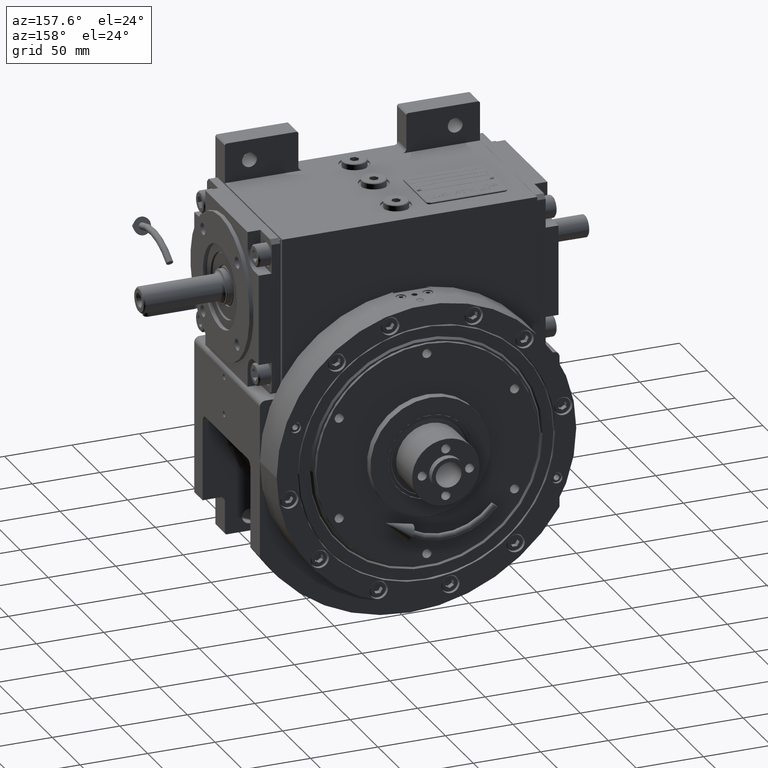
[diagram: clean part render]
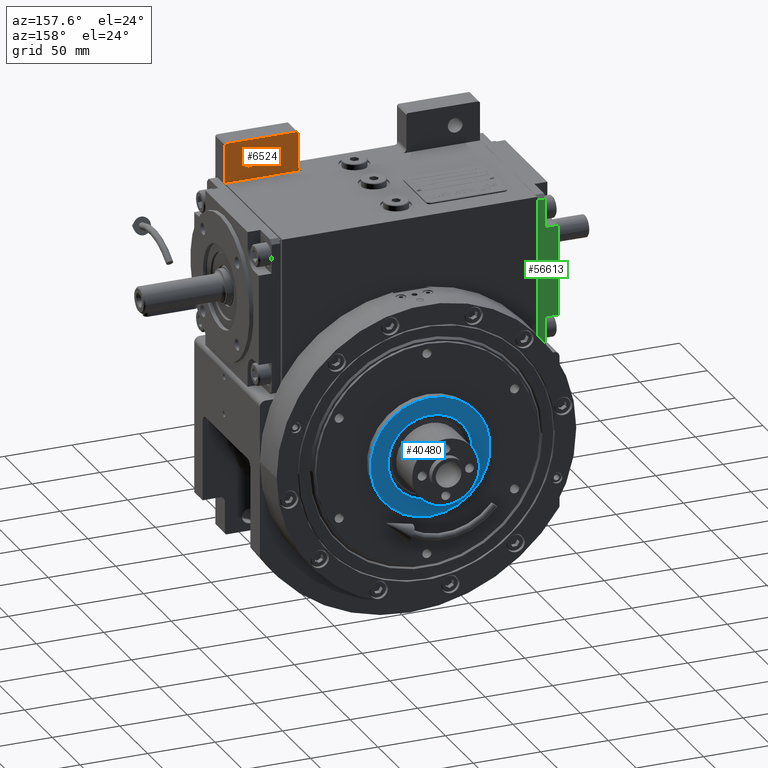
[diagram: same view with three faces highlighted in distinct colors, each labeled with its STEP entity id]
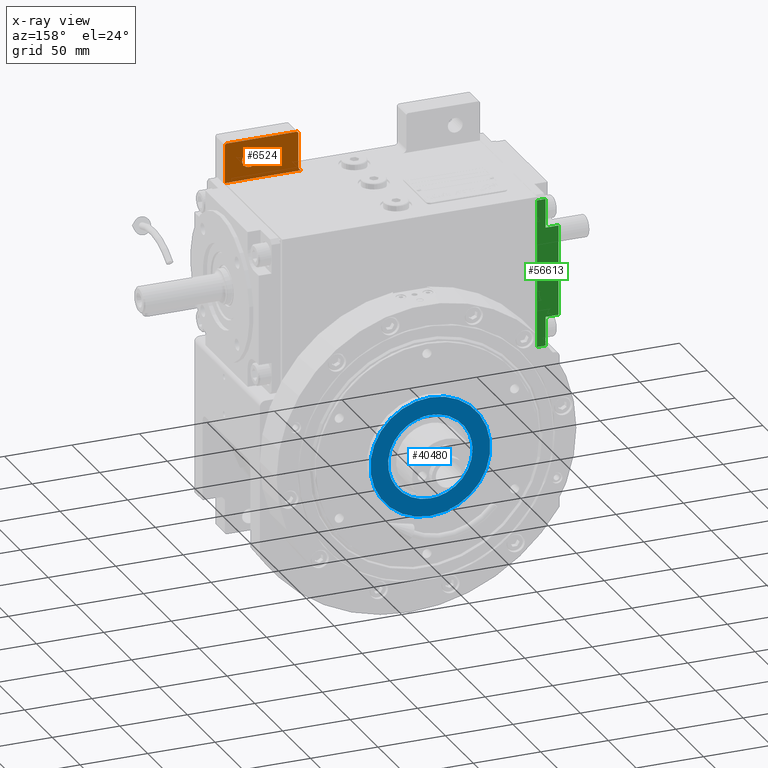
[diagram: x-ray of the same camera — body ghosted, the three highlighted faces saturated]
A machine part, auxiliary view with three faces highlighted in distinct colors.
The next image is the same camera in x-ray (body ghosted, the three faces saturated) — at least one of them is partly hidden behind the body in this view.
Their STEP definitions:

[orange] entity #6524 — the highlighted planar face has unit normal (0, -1, 0).
#231 = VERTEX_POINT ( 'NONE', #30498 ) ;
#1372 = EDGE_CURVE ( 'NONE', #59759, #7209, #61216, .T. ) ;
#1611 = CARTESIAN_POINT ( 'NONE',  ( 76.20000000000000284, -38.50000000000000000, 178.0000000000000000 ) ) ;
#1772 = DIRECTION ( 'NONE',  ( -1.000000000000000000, 0.000000000000000000, 0.000000000000000000 ) ) ;
#2124 = FACE_OUTER_BOUND ( 'NONE', #61649, .T. ) ;
#2188 = LINE ( 'NONE', #35817, #35977 ) ;
#4143 = DIRECTION ( 'NONE',  ( 0.000000000000000000, 0.000000000000000000, 1.000000000000000000 ) ) ;
#6524 = ADVANCED_FACE ( 'NONE', ( #45437, #2124 ), #50788, .F. ) ;
#6759 = ORIENTED_EDGE ( 'NONE', *, *, #23683, .F. ) ;
#6913 = ORIENTED_EDGE ( 'NONE', *, *, #24548, .F. ) ;
#7209 = VERTEX_POINT ( 'NONE', #35658 ) ;
#8736 = ORIENTED_EDGE ( 'NONE', *, *, #32610, .F. ) ;
#9000 = CARTESIAN_POINT ( 'NONE',  ( 94.50000000000000000, -38.50000000000000000, 163.5000000000000000 ) ) ;
#10525 = CARTESIAN_POINT ( 'NONE',  ( 94.50000000000000000, -38.50000000000000000, 163.5000000000000000 ) ) ;
#10631 = EDGE_CURVE ( 'NONE', #26748, #69079, #2188, .T. ) ;
#10880 = LINE ( 'NONE', #10525, #69601 ) ;
#12683 = DIRECTION ( 'NONE',  ( -1.000000000000000000, 0.000000000000000000, 0.000000000000000000 ) ) ;
#13373 = DIRECTION ( 'NONE',  ( 0.7071067811865474617, 0.000000000000000000, 0.7071067811865474617 ) ) ;
#15368 = CARTESIAN_POINT ( 'NONE',  ( 36.99999999999934630, -38.50000000000000000, 166.5000000000000000 ) ) ;
#15635 = EDGE_CURVE ( 'NONE', #7209, #59759, #28812, .T. ) ;
#18226 = LINE ( 'NONE', #34686, #52619 ) ;
#19763 = CARTESIAN_POINT ( 'NONE',  ( 36.99999999999934630, -38.50000000000000000, 163.5000000000000000 ) ) ;
#20429 = LINE ( 'NONE', #54045, #45218 ) ;
#21100 = DIRECTION ( 'NONE',  ( 0.000000000000000000, -1.000000000000000000, 0.000000000000000000 ) ) ;
#23648 = DIRECTION ( 'NONE',  ( 1.000000000000000000, 0.000000000000000000, 0.000000000000000000 ) ) ;
#23683 = EDGE_CURVE ( 'NONE', #63006, #231, #10880, .T. ) ;
#24467 = ORIENTED_EDGE ( 'NONE', *, *, #61440, .T. ) ;
#24508 = DIRECTION ( 'NONE',  ( 0.000000000000000000, 1.000000000000000000, 0.000000000000000000 ) ) ;
#24548 = EDGE_CURVE ( 'NONE', #36415, #63006, #24704, .T. ) ;
#24704 = LINE ( 'NONE', #40446, #45188 ) ;
#25361 = CARTESIAN_POINT ( 'NONE',  ( 93.50000000000000000, -38.50000000000000000, 193.0000000000000000 ) ) ;
#26140 = EDGE_CURVE ( 'NONE', #36415, #69079, #65652, .T. ) ;
#26495 = DIRECTION ( 'NONE',  ( -1.000000000000000000, 0.000000000000000000, 0.000000000000000000 ) ) ;
#26563 = AXIS2_PLACEMENT_3D ( 'NONE', #35605, #24508, #35963 ) ;
#26748 = VERTEX_POINT ( 'NONE', #43902 ) ;
#26799 = CARTESIAN_POINT ( 'NONE',  ( 70.70000000000000284, -38.50000000000000000, 178.0000000000000000 ) ) ;
#27671 = ORIENTED_EDGE ( 'NONE', *, *, #15635, .F. ) ;
#28812 = CIRCLE ( 'NONE', #26563, 5.500000000000005329 ) ;
#30377 = AXIS2_PLACEMENT_3D ( 'NONE', #1611, #56343, #12683 ) ;
#30498 = CARTESIAN_POINT ( 'NONE',  ( 94.50000000000000000, -38.50000000000000000, 192.0000000000000000 ) ) ;
#32610 = EDGE_CURVE ( 'NONE', #68641, #39279, #20429, .T. ) ;
#33597 = EDGE_CURVE ( 'NONE', #26748, #39279, #45946, .T. ) ;
#33687 = AXIS2_PLACEMENT_3D ( 'NONE', #15368, #21100, #70496 ) ;
#34677 = DIRECTION ( 'NONE',  ( 0.000000000000000000, -1.000000000000000000, 0.000000000000000000 ) ) ;
#34686 = CARTESIAN_POINT ( 'NONE',  ( 93.50000000000000000, -38.50000000000000000, 193.0000000000000000 ) ) ;
#35605 = CARTESIAN_POINT ( 'NONE',  ( 76.20000000000000284, -38.50000000000000000, 178.0000000000000000 ) ) ;
#35658 = CARTESIAN_POINT ( 'NONE',  ( 81.69999999999998863, -38.50000000000000000, 178.0000000000000000 ) ) ;
#35817 = CARTESIAN_POINT ( 'NONE',  ( 39.99999999999929656, -38.50000000000000000, 192.0000000000000000 ) ) ;
#35963 = DIRECTION ( 'NONE',  ( 1.000000000000000000, 0.000000000000000000, 0.000000000000000000 ) ) ;
#35977 = VECTOR ( 'NONE', #57643, 1000.000000000000000 ) ;
#36415 = VERTEX_POINT ( 'NONE', #19763 ) ;
#39279 = VERTEX_POINT ( 'NONE', #70658 ) ;
#40446 = CARTESIAN_POINT ( 'NONE',  ( 36.99999999999934630, -38.50000000000000000, 163.5000000000000000 ) ) ;
#42766 = EDGE_LOOP ( 'NONE', ( #27671, #45607 ) ) ;
#43317 = CARTESIAN_POINT ( 'NONE',  ( 39.99999999999929656, -38.50000000000000000, 166.5000000000000000 ) ) ;
#43902 = CARTESIAN_POINT ( 'NONE',  ( 39.99999999999929656, -38.50000000000000000, 192.0000000000000000 ) ) ;
#45188 = VECTOR ( 'NONE', #23648, 1000.000000000000000 ) ;
#45218 = VECTOR ( 'NONE', #26495, 1000.000000000000000 ) ;
#45437 = FACE_BOUND ( 'NONE', #42766, .T. ) ;
#45607 = ORIENTED_EDGE ( 'NONE', *, *, #1372, .F. ) ;
#45784 = CARTESIAN_POINT ( 'NONE',  ( 0.000000000000000000, -38.50000000000000000, 0.000000000000000000 ) ) ;
#45946 = LINE ( 'NONE', #67788, #56755 ) ;
#49064 = ORIENTED_EDGE ( 'NONE', *, *, #26140, .T. ) ;
#50788 = PLANE ( 'NONE',  #65447 ) ;
#52619 = VECTOR ( 'NONE', #57591, 1000.000000000000114 ) ;
#54045 = CARTESIAN_POINT ( 'NONE',  ( 93.50000000000000000, -38.50000000000000000, 193.0000000000000000 ) ) ;
#55724 = ORIENTED_EDGE ( 'NONE', *, *, #10631, .F. ) ;
#56343 = DIRECTION ( 'NONE',  ( 0.000000000000000000, 1.000000000000000000, 0.000000000000000000 ) ) ;
#56755 = VECTOR ( 'NONE', #13373, 1000.000000000000114 ) ;
#57591 = DIRECTION ( 'NONE',  ( 0.7071067811865474617, 0.000000000000000000, -0.7071067811865474617 ) ) ;
#57643 = DIRECTION ( 'NONE',  ( 0.000000000000000000, 0.000000000000000000, -1.000000000000000000 ) ) ;
#59759 = VERTEX_POINT ( 'NONE', #26799 ) ;
#61216 = CIRCLE ( 'NONE', #30377, 5.500000000000005329 ) ;
#61440 = EDGE_CURVE ( 'NONE', #68641, #231, #18226, .T. ) ;
#61649 = EDGE_LOOP ( 'NONE', ( #8736, #24467, #6759, #6913, #49064, #55724, #69965 ) ) ;
#63006 = VERTEX_POINT ( 'NONE', #9000 ) ;
#65447 = AXIS2_PLACEMENT_3D ( 'NONE', #45784, #34677, #1772 ) ;
#65652 = CIRCLE ( 'NONE', #33687, 3.000000000000002665 ) ;
#67788 = CARTESIAN_POINT ( 'NONE',  ( 39.99999999999929656, -38.50000000000000000, 192.0000000000000000 ) ) ;
#68641 = VERTEX_POINT ( 'NONE', #25361 ) ;
#69079 = VERTEX_POINT ( 'NONE', #43317 ) ;
#69601 = VECTOR ( 'NONE', #4143, 1000.000000000000000 ) ;
#69965 = ORIENTED_EDGE ( 'NONE', *, *, #33597, .T. ) ;
#70496 = DIRECTION ( 'NONE',  ( -9.251858538542962756E-15, 0.000000000000000000, -1.000000000000000000 ) ) ;
#70658 = CARTESIAN_POINT ( 'NONE',  ( 40.99999999999930367, -38.50000000000000000, 193.0000000000000000 ) ) ;

[blue] entity #40480 — the highlighted planar face has unit normal (-0, -1, 0).
#1077 = CARTESIAN_POINT ( 'NONE',  ( 23.56106954454595126, 116.4999999999999432, 20.65840718858142822 ) ) ;
#1425 = CARTESIAN_POINT ( 'NONE',  ( -2.053096772983523000, 116.4999999999999574, 31.26798409011536606 ) ) ;
#1785 = CARTESIAN_POINT ( 'NONE',  ( 27.13930926867392657, 116.4999999999999716, 15.66362346839591346 ) ) ;
#2121 = EDGE_CURVE ( 'NONE', #4534, #40847, #40532, .T. ) ;
#2620 = CARTESIAN_POINT ( 'NONE',  ( -30.69231964725720374, 116.5000000000000426, -5.972002738410580491 ) ) ;
#2854 = AXIS2_PLACEMENT_3D ( 'NONE', #69756, #30770, #19667 ) ;
#3141 = CARTESIAN_POINT ( 'NONE',  ( 30.27389646669557521, 116.5000000000000142, -7.850093676631257011 ) ) ;
#3674 = CARTESIAN_POINT ( 'NONE',  ( -28.10283371115260564, 116.5000000000000000, -13.86134274589168847 ) ) ;
#4534 = VERTEX_POINT ( 'NONE', #24450 ) ;
#5204 = B_SPLINE_CURVE_WITH_KNOTS ( 'NONE', 3,
 ( #23629, #30676, #23263, #30321, #57883, #25294, #47127, #56168, #68964, #45096, #68609, #39009, #7154, #45459, #52165, #3141, #60853, #32065, #31025, #53541, #15946, #70369, #52840 ),
 .UNSPECIFIED., .F., .F.,
 ( 4, 2, 2, 2, 2, 2, 2, 1, 1, 1, 2, 2, 4 ),
 ( 0.5000001637338385985, 0.5625001432671088430, 0.6250001228003789766, 0.6875001023336492212, 0.7500000818669194658, 0.8125000614001897103, 0.8750000409334598439, 0.9062500307000950217, 0.9218750255834124996, 0.9296875230250714051, 0.9335937717459006358, 0.9375000204667300885, 1.000000000000000000 ),
 .UNSPECIFIED. ) ;
#5753 = CARTESIAN_POINT ( 'NONE',  ( -29.28018756600021533, 116.5000000000000284, 11.01890060063736065 ) ) ;
#6201 = ORIENTED_EDGE ( 'NONE', *, *, #37591, .T. ) ;
#6353 = ORIENTED_EDGE ( 'NONE', *, *, #50785, .T. ) ;
#6457 = CARTESIAN_POINT ( 'NONE',  ( 20.65867620835430074, 116.4999999999999716, 23.56087162834710114 ) ) ;
#6799 = CARTESIAN_POINT ( 'NONE',  ( -30.64229771868189545, 116.5000000000000000, 6.222993749043912892 ) ) ;
#7145 = CARTESIAN_POINT ( 'NONE',  ( -24.85746488858383074, 116.5000000000000142, 19.07864854071407734 ) ) ;
#7154 = CARTESIAN_POINT ( 'NONE',  ( 28.10324217889602849, 116.5000000000000284, -13.86017367120655308 ) ) ;
#9030 = CARTESIAN_POINT ( 'NONE',  ( -30.97209511735421117, 116.5000000000000711, -4.341504525693896888 ) ) ;
#9376 = CARTESIAN_POINT ( 'NONE',  ( -4.087148336983807084, 116.5000000000000284, -31.06763831290415823 ) ) ;
#9534 = ORIENTED_EDGE ( 'NONE', *, *, #2121, .F. ) ;
#11788 = CARTESIAN_POINT ( 'NONE',  ( 15.66544372651526906, 116.4999999999999858, 27.13836624114571094 ) ) ;
#12152 = CARTESIAN_POINT ( 'NONE',  ( -27.13939157299003213, 116.4999999999999858, 15.66357593164753581 ) ) ;
#13276 = EDGE_LOOP ( 'NONE', ( #6201, #16554, #27856 ) ) ;
#13690 = CARTESIAN_POINT ( 'NONE',  ( -30.26588030596537848, 116.5000000000000426, -8.115007851786090853 ) ) ;
#14410 = CARTESIAN_POINT ( 'NONE',  ( -10.07004187268711348, 116.5000000000000426, -29.67313161849512682 ) ) ;
#14751 = CARTESIAN_POINT ( 'NONE',  ( -30.76282698641443147, 116.5000000000000568, -5.597631685883577290 ) ) ;
#15946 = CARTESIAN_POINT ( 'NONE',  ( 31.06494594057651426, 116.4999999999999858, -4.099264542564577063 ) ) ;
#16107 = CARTESIAN_POINT ( 'NONE',  ( 30.69232002548463356, 116.4999999999999716, 5.972000795740355805 ) ) ;
#16554 = ORIENTED_EDGE ( 'NONE', *, *, #35905, .T. ) ;
#17168 = CARTESIAN_POINT ( 'NONE',  ( -10.06873742141283934, 116.4999999999999716, 29.67359883406319199 ) ) ;
#17285 = AXIS2_PLACEMENT_3D ( 'NONE', #19182, #35637, #57473 ) ;
#17521 = CARTESIAN_POINT ( 'NONE',  ( -4.086067785040813582, 116.4999999999999716, 31.06779045544264761 ) ) ;
#18232 = CARTESIAN_POINT ( 'NONE',  ( -30.48100220693955009, 116.5000000000000142, 6.977461523368433838 ) ) ;
#18711 = CARTESIAN_POINT ( 'NONE',  ( -31.19052070253879450, 116.5000000000000284, -2.570251171518669331 ) ) ;
#19182 = CARTESIAN_POINT ( 'NONE',  ( -4.002779521985354660E-14, 116.5000000000000000, 1.843108998755953617E-13 ) ) ;
#19667 = DIRECTION ( 'NONE',  ( 1.000000000000000000, -9.366335978277473892E-16, -8.404735241107627414E-16 ) ) ;
#20790 = CARTESIAN_POINT ( 'NONE',  ( 30.71618894942456990, 116.4999999999999858, 5.848041702672043485 ) ) ;
#22552 = CARTESIAN_POINT ( 'NONE',  ( 4.087162932498085155, 116.4999999999999716, 31.06763634548224928 ) ) ;
#23250 = CARTESIAN_POINT ( 'NONE',  ( 10.07005390161413416, 116.4999999999999289, 29.67312748738786965 ) ) ;
#23263 = CARTESIAN_POINT ( 'NONE',  ( 4.086082564326905420, 116.5000000000000284, -31.06778845133713318 ) ) ;
#23619 = CARTESIAN_POINT ( 'NONE',  ( -28.10324012942906791, 116.5000000000000000, 13.86017793222174888 ) ) ;
#23629 = CARTESIAN_POINT ( 'NONE',  ( -1.995085261315435097E-09, 116.4999999999999574, -31.26788886524110822 ) ) ;
#23840 = PLANE ( 'NONE',  #17285 ) ;
#24073 = B_SPLINE_CURVE_WITH_KNOTS ( 'NONE', 3,
 ( #65152, #70174, #47996, #42979, #69824, #54408, #20790, #16107, #42616, #48341, #31874, #1785, #28633, #1077, #6457, #45449, #11788, #44735, #23250, #66206, #22552, #44376, #1425, #17521, #45086, #17168, #44028, #39352, #65853, #56156, #61196, #7145, #12152, #23619, #5753, #33999, #67264, #18232, #61891, #60844, #6799, #38997, #49751, #55105 ),
 .UNSPECIFIED., .F., .F.,
 ( 4, 1, 1, 1, 2, 2, 2, 2, 2, 2, 2, 2, 2, 2, 2, 2, 2, 2, 2, 1, 1, 1, 2, 2, 4 ),
 ( 0.000000000000000000, 0.03124999999999971551, 0.04687499999999958367, 0.05468749999999953509, 0.05859374999999950734, 0.06249999999999948652, 0.1249999999999995282, 0.1874999999999995559, 0.2499999999999996114, 0.3124999999999996669, 0.3749999999999996669, 0.4374999999999997224, 0.4999999999999997780, 0.5624999999999997780, 0.6249999999999998890, 0.6875000000000000000, 0.7500000000000000000, 0.8125000000000001110, 0.8750000000000002220, 0.9062500000000003331, 0.9218750000000003331, 0.9296875000000004441, 0.9335937500000003331, 0.9375000000000003331, 1.000000000000000000 ),
 .UNSPECIFIED. ) ;
#24081 = CARTESIAN_POINT ( 'NONE',  ( -24.85759955026999535, 116.5000000000000284, -19.07855545183790014 ) ) ;
#24431 = CARTESIAN_POINT ( 'NONE',  ( -20.65866969450221191, 116.5000000000000853, -23.56087740024473476 ) ) ;
#24450 = CARTESIAN_POINT ( 'NONE',  ( 44.44999999999973994, 116.5000000000000000, 1.487663700696096830E-13 ) ) ;
#25150 = CARTESIAN_POINT ( 'NONE',  ( -29.67291904149639237, 116.5000000000000426, -10.07059468067875763 ) ) ;
#25294 = CARTESIAN_POINT ( 'NONE',  ( 13.86287316035969042, 116.5000000000000711, -28.10187253233281623 ) ) ;
#27856 = ORIENTED_EDGE ( 'NONE', *, *, #56039, .T. ) ;
#28633 = CARTESIAN_POINT ( 'NONE',  ( 24.85760359141532660, 116.4999999999999432, 19.07855011180431148 ) ) ;
#30321 = CARTESIAN_POINT ( 'NONE',  ( 8.114155153269519971, 116.5000000000000711, -30.26646147271070220 ) ) ;
#30676 = CARTESIAN_POINT ( 'NONE',  ( 2.053112133089395996, 116.5000000000000426, -31.26798304087500568 ) ) ;
#30770 = DIRECTION ( 'NONE',  ( 2.076516686384258083E-16, -1.000000000000000000, -1.606026332851818412E-15 ) ) ;
#30885 = CARTESIAN_POINT ( 'NONE',  ( -2.053113481735713730, 116.5000000000000711, -31.26791487345450449 ) ) ;
#31025 = CARTESIAN_POINT ( 'NONE',  ( 30.61621659659157046, 116.4999999999999858, -6.350045747762194992 ) ) ;
#31874 = CARTESIAN_POINT ( 'NONE',  ( 28.10283574389676886, 116.4999999999999716, 13.86133852400394062 ) ) ;
#32065 = CARTESIAN_POINT ( 'NONE',  ( 30.56302886948797948, 116.5000000000000000, -6.601300797555628819 ) ) ;
#33999 = CARTESIAN_POINT ( 'NONE',  ( -29.79683537730154796, 116.5000000000000284, 9.575090709668341304 ) ) ;
#35170 = CARTESIAN_POINT ( 'NONE',  ( -31.26791174109665761, 116.5000100331852053, 3.475376356750978033E-07 ) ) ;
#35637 = DIRECTION ( 'NONE',  ( -7.110468897703216240E-16, -1.000000000000000000, -1.582067810090945692E-15 ) ) ;
#35905 = EDGE_CURVE ( 'NONE', #48402, #51275, #5204, .T. ) ;
#37591 = EDGE_CURVE ( 'NONE', #66774, #48402, #52050, .T. ) ;
#38997 = CARTESIAN_POINT ( 'NONE',  ( -31.06494580941708961, 116.5000000000000284, 4.099265873857484088 ) ) ;
#39009 = CARTESIAN_POINT ( 'NONE',  ( 27.13939421263572527, 116.5000000000000284, -15.66357127335523458 ) ) ;
#39352 = CARTESIAN_POINT ( 'NONE',  ( -15.66449533152386842, 116.4999999999999716, 27.13889868369026459 ) ) ;
#40480 = ADVANCED_FACE ( 'NONE', ( #57120, #51058 ), #23840, .F. ) ;
#40532 = CIRCLE ( 'NONE', #2854, 44.45000000000000284 ) ;
#40537 = CARTESIAN_POINT ( 'NONE',  ( -19.07784363752283951, 116.5000000000000568, -24.85800521565953147 ) ) ;
#40847 = VERTEX_POINT ( 'NONE', #64136 ) ;
#40921 = CARTESIAN_POINT ( 'NONE',  ( -4.012068455237687749E-14, 116.5000000000000000, 1.843108998755953617E-13 ) ) ;
#41604 = CARTESIAN_POINT ( 'NONE',  ( -27.13930658515481298, 116.5000000000000711, -15.66362819286372776 ) ) ;
#41702 = CARTESIAN_POINT ( 'NONE',  ( -31.26791174109665761, 116.5000100331852053, 3.475376356750978033E-07 ) ) ;
#42616 = CARTESIAN_POINT ( 'NONE',  ( 30.26588095728747874, 116.4999999999999716, 8.115005249811146015 ) ) ;
#42979 = CARTESIAN_POINT ( 'NONE',  ( 30.97209530925908183, 116.4999999999999716, 4.341503120111005032 ) ) ;
#44028 = CARTESIAN_POINT ( 'NONE',  ( -13.86286297338911133, 116.4999999999999716, 28.10187760395059087 ) ) ;
#44376 = CARTESIAN_POINT ( 'NONE',  ( 2.053129048722300176, 116.4999999999999574, 31.26791382369322037 ) ) ;
#44735 = CARTESIAN_POINT ( 'NONE',  ( 13.86161189088835499, 116.4999999999999716, 28.10233327774927758 ) ) ;
#45086 = CARTESIAN_POINT ( 'NONE',  ( -8.114142232209779593, 116.4999999999999716, 30.26646497918404677 ) ) ;
#45096 = CARTESIAN_POINT ( 'NONE',  ( 23.56094898208164778, 116.5000000000000142, -20.65865893575709933 ) ) ;
#45449 = CARTESIAN_POINT ( 'NONE',  ( 19.07785114619630562, 116.4999999999999716, 24.85799940880703573 ) ) ;
#45459 = CARTESIAN_POINT ( 'NONE',  ( 29.28018885373970193, 116.4999999999999858, -11.01889714858534397 ) ) ;
#46977 = CARTESIAN_POINT ( 'NONE',  ( -15.66543447339037876, 116.5000000000000995, -27.13837163548606313 ) ) ;
#47127 = CARTESIAN_POINT ( 'NONE',  ( 15.66450469412354529, 116.5000000000000426, -27.13889321604017368 ) ) ;
#47334 = CARTESIAN_POINT ( 'NONE',  ( -1.995085261315435097E-09, 116.4999999999999574, -31.26788886524110822 ) ) ;
#47996 = CARTESIAN_POINT ( 'NONE',  ( 31.19052075215509134, 116.5000000000000000, 2.570250333920130359 ) ) ;
#48341 = CARTESIAN_POINT ( 'NONE',  ( 29.67292009366376604, 116.4999999999999716, 10.07059145448465820 ) ) ;
#48402 = VERTEX_POINT ( 'NONE', #57680 ) ;
#49751 = CARTESIAN_POINT ( 'NONE',  ( -31.26520908302590840, 116.5000000000000142, 2.066576479617142859 ) ) ;
#50785 = EDGE_CURVE ( 'NONE', #4534, #40847, #61423, .T. ) ;
#51058 = FACE_OUTER_BOUND ( 'NONE', #52273, .T. ) ;
#51275 = VERTEX_POINT ( 'NONE', #58636 ) ;
#52050 = B_SPLINE_CURVE_WITH_KNOTS ( 'NONE', 3,
 ( #35170, #68810, #18711, #9030, #56996, #14751, #52693, #2620, #13690, #25150, #3674, #41604, #24081, #63787, #24431, #40537, #46977, #62379, #14410, #69164, #9376, #30885, #47334 ),
 .UNSPECIFIED., .F., .F.,
 ( 4, 1, 1, 1, 2, 2, 2, 2, 2, 2, 2, 2, 4 ),
 ( 0.000000000000000000, 0.03125001023336476669, 0.04687501535004715697, 0.05468751790838836252, 0.05859376918755895836, 0.06250002046672956113, 0.1250000409334594553, 0.1875000614001892663, 0.2500000818669191327, 0.3125001023336489991, 0.3750001228003788101, 0.4375001432671087320, 0.5000001637338385985 ),
 .UNSPECIFIED. ) ;
#52165 = CARTESIAN_POINT ( 'NONE',  ( 29.79683633121478081, 116.4999999999999716, -9.575087677288067312 ) ) ;
#52273 = EDGE_LOOP ( 'NONE', ( #9534, #6353 ) ) ;
#52693 = CARTESIAN_POINT ( 'NONE',  ( -30.71618859057416273, 116.5000000000000711, -5.848043587430415968 ) ) ;
#52840 = CARTESIAN_POINT ( 'NONE',  ( 31.26791174109628457, 116.5000100331852053, -3.475372597228207109E-07 ) ) ;
#53541 = CARTESIAN_POINT ( 'NONE',  ( 30.64229812569504929, 116.5000000000000000, -6.222991745892601401 ) ) ;
#54408 = CARTESIAN_POINT ( 'NONE',  ( 30.76282731482914556, 116.4999999999999432, 5.597629880542625891 ) ) ;
#55105 = CARTESIAN_POINT ( 'NONE',  ( -31.26791174109665761, 116.5000100331852053, 3.475376356750978033E-07 ) ) ;
#56039 = EDGE_CURVE ( 'NONE', #51275, #66774, #24073, .T. ) ;
#56156 = CARTESIAN_POINT ( 'NONE',  ( -20.65877929373939281, 116.4999999999999858, 23.56067550690724488 ) ) ;
#56168 = CARTESIAN_POINT ( 'NONE',  ( 19.07874025736001045, 116.5000000000000142, -24.85747324367083166 ) ) ;
#56996 = CARTESIAN_POINT ( 'NONE',  ( -30.83046936905275714, 116.5000000000000711, -5.221620189777303800 ) ) ;
#57120 = FACE_BOUND ( 'NONE', #13276, .T. ) ;
#57473 = DIRECTION ( 'NONE',  ( -1.000000000000000000, 7.110468897703203421E-16, 8.404735241107630372E-16 ) ) ;
#57680 = CARTESIAN_POINT ( 'NONE',  ( -1.995085261315435097E-09, 116.4999999999999574, -31.26788886524110822 ) ) ;
#57883 = CARTESIAN_POINT ( 'NONE',  ( 10.06874959860265051, 116.5000000000000426, -29.67359464129391000 ) ) ;
#58636 = CARTESIAN_POINT ( 'NONE',  ( 31.26791174109628457, 116.5000100331852053, -3.475372597228207109E-07 ) ) ;
#59139 = AXIS2_PLACEMENT_3D ( 'NONE', #40921, #67072, #62746 ) ;
#60844 = CARTESIAN_POINT ( 'NONE',  ( -30.61621616948890789, 116.5000000000000000, 6.350047807402969369 ) ) ;
#60853 = CARTESIAN_POINT ( 'NONE',  ( 30.48100272070927019, 116.5000000000000000, -6.977459271933685869 ) ) ;
#61196 = CARTESIAN_POINT ( 'NONE',  ( -23.56094416087326238, 116.4999999999999858, 20.65866449915816716 ) ) ;
#61423 = CIRCLE ( 'NONE', #59139, 44.45000000000000284 ) ;
#61891 = CARTESIAN_POINT ( 'NONE',  ( -30.56302840830647582, 116.5000000000000142, 6.601302934103864040 ) ) ;
#62379 = CARTESIAN_POINT ( 'NONE',  ( -13.86160157078573540, 116.5000000000000853, -28.10233840555480356 ) ) ;
#62746 = DIRECTION ( 'NONE',  ( 1.000000000000000000, -9.366335978277473892E-16, -8.404735241107627414E-16 ) ) ;
#63787 = CARTESIAN_POINT ( 'NONE',  ( -23.56106465311684062, 116.5000000000000853, -20.65841282224092978 ) ) ;
#64136 = CARTESIAN_POINT ( 'NONE',  ( -44.45000000000026574, 116.5000000000000000, 2.180409113408455842E-13 ) ) ;
#65152 = CARTESIAN_POINT ( 'NONE',  ( 31.26791174109628457, 116.5000100331852053, -3.475372597228207109E-07 ) ) ;
#65853 = CARTESIAN_POINT ( 'NONE',  ( -19.07873284917547352, 116.4999999999999858, 24.85747898239212361 ) ) ;
#66206 = CARTESIAN_POINT ( 'NONE',  ( 8.113110194579574497, 116.4999999999999716, 30.26659676686691469 ) ) ;
#66774 = VERTEX_POINT ( 'NONE', #41702 ) ;
#67072 = DIRECTION ( 'NONE',  ( -2.076516686384259069E-16, 1.000000000000000000, 1.558109287330073366E-15 ) ) ;
#67264 = CARTESIAN_POINT ( 'NONE',  ( -30.27389581993063317, 116.5000000000000142, 7.850096192811641060 ) ) ;
#68609 = CARTESIAN_POINT ( 'NONE',  ( 24.85746897425200785, 116.5000000000000284, -19.07864313407205969 ) ) ;
#68810 = CARTESIAN_POINT ( 'NONE',  ( -31.26661249883692406, 116.5000000000000284, -1.033139109068331063 ) ) ;
#68964 = CARTESIAN_POINT ( 'NONE',  ( 20.65878587691158330, 116.5000000000000284, -23.56066966652860017 ) ) ;
#69164 = CARTESIAN_POINT ( 'NONE',  ( -8.113097104373764523, 116.5000000000000568, -30.26660030804391965 ) ) ;
#69756 = CARTESIAN_POINT ( 'NONE',  ( -4.012068455237687749E-14, 116.5000000000000000, 1.843108998755953617E-13 ) ) ;
#69824 = CARTESIAN_POINT ( 'NONE',  ( 30.83046965333025113, 116.4999999999999716, 5.221618503820960377 ) ) ;
#70174 = CARTESIAN_POINT ( 'NONE',  ( 31.26661249927460062, 116.4999999999999716, 1.033138770720585908 ) ) ;
#70369 = CARTESIAN_POINT ( 'NONE',  ( 31.26520908392312847, 116.4999999999999716, -2.066575802867524736 ) ) ;

[green] entity #56613 — the highlighted planar face has unit normal (-0, 1, 0).
#531 = LINE ( 'NONE', #39157, #24277 ) ;
#3022 = CARTESIAN_POINT ( 'NONE',  ( 62.50000000000152767, -6.499999999999992006, 33.50000000000211031 ) ) ;
#4110 = LINE ( 'NONE', #8409, #33399 ) ;
#4861 = CARTESIAN_POINT ( 'NONE',  ( 62.49999999999849365, -6.499999999999992006, -54.99999999999788258 ) ) ;
#5052 = CARTESIAN_POINT ( 'NONE',  ( 62.50000000000196820, 0.000000000000000000, 55.00000000000184741 ) ) ;
#5743 = VECTOR ( 'NONE', #13360, 1000.000000000000000 ) ;
#6087 = EDGE_CURVE ( 'NONE', #46437, #46762, #531, .T. ) ;
#6249 = DIRECTION ( 'NONE',  ( 5.031366674236463352E-29, 1.000000000000000000, 4.218847493575601953E-15 ) ) ;
#8062 = CARTESIAN_POINT ( 'NONE',  ( 62.49999999999840838, 0.000000000000000000, -54.99999999999788258 ) ) ;
#8338 = EDGE_CURVE ( 'NONE', #43712, #34619, #57083, .T. ) ;
#8409 = CARTESIAN_POINT ( 'NONE',  ( 62.50000000000196820, 0.000000000000000000, 55.00000000000184741 ) ) ;
#9219 = CARTESIAN_POINT ( 'NONE',  ( 62.49999999999904077, -6.499999999999992006, -33.49999999999788969 ) ) ;
#10452 = ORIENTED_EDGE ( 'NONE', *, *, #55780, .T. ) ;
#13360 = DIRECTION ( 'NONE',  ( -3.164135620181692354E-14, -4.218847493575603531E-15, -1.000000000000000000 ) ) ;
#14090 = DIRECTION ( 'NONE',  ( -5.031366674236463352E-29, -1.000000000000000000, -4.218847493575601953E-15 ) ) ;
#15687 = EDGE_CURVE ( 'NONE', #16191, #43712, #4110, .T. ) ;
#15853 = DIRECTION ( 'NONE',  ( -3.164135620181692354E-14, -4.218847493575603531E-15, -1.000000000000000000 ) ) ;
#16191 = VERTEX_POINT ( 'NONE', #5052 ) ;
#17170 = ORIENTED_EDGE ( 'NONE', *, *, #54046, .T. ) ;
#19279 = VECTOR ( 'NONE', #56237, 1000.000000000000000 ) ;
#19482 = ORIENTED_EDGE ( 'NONE', *, *, #29907, .T. ) ;
#19520 = AXIS2_PLACEMENT_3D ( 'NONE', #43075, #64890, #15853 ) ;
#20219 = VECTOR ( 'NONE', #14090, 1000.000000000000000 ) ;
#20934 = CARTESIAN_POINT ( 'NONE',  ( 62.49999999999893419, -16.00000000000000000, -33.49999999999788969 ) ) ;
#21248 = PLANE ( 'NONE',  #19520 ) ;
#21258 = CARTESIAN_POINT ( 'NONE',  ( 62.50000000000095923, -16.00000000000000000, 33.50000000000211031 ) ) ;
#23040 = CARTESIAN_POINT ( 'NONE',  ( 62.49999999999840838, 0.000000000000000000, -54.99999999999788258 ) ) ;
#23500 = ORIENTED_EDGE ( 'NONE', *, *, #6087, .F. ) ;
#24277 = VECTOR ( 'NONE', #6249, 1000.000000000000000 ) ;
#25173 = LINE ( 'NONE', #68138, #5743 ) ;
#25978 = CARTESIAN_POINT ( 'NONE',  ( 62.50000000000095923, -16.00000000000000000, 33.50000000000211031 ) ) ;
#26274 = LINE ( 'NONE', #21258, #64302 ) ;
#29907 = EDGE_CURVE ( 'NONE', #39170, #43029, #67351, .T. ) ;
#30604 = DIRECTION ( 'NONE',  ( -3.164135620181692354E-14, -4.218847493575603531E-15, -1.000000000000000000 ) ) ;
#31075 = ORIENTED_EDGE ( 'NONE', *, *, #63845, .T. ) ;
#33399 = VECTOR ( 'NONE', #30604, 1000.000000000000000 ) ;
#34619 = VERTEX_POINT ( 'NONE', #4861 ) ;
#35491 = DIRECTION ( 'NONE',  ( -3.164135620181692354E-14, -4.218847493575603531E-15, -1.000000000000000000 ) ) ;
#39157 = CARTESIAN_POINT ( 'NONE',  ( 62.50000000000095923, -16.00000000000000000, 33.50000000000211031 ) ) ;
#39170 = VERTEX_POINT ( 'NONE', #20934 ) ;
#41142 = VECTOR ( 'NONE', #35491, 1000.000000000000000 ) ;
#43029 = VERTEX_POINT ( 'NONE', #9219 ) ;
#43075 = CARTESIAN_POINT ( 'NONE',  ( 62.50000000000158451, 0.000000000000000000, 58.00000000000184741 ) ) ;
#43712 = VERTEX_POINT ( 'NONE', #23040 ) ;
#46437 = VERTEX_POINT ( 'NONE', #25978 ) ;
#46762 = VERTEX_POINT ( 'NONE', #3022 ) ;
#49829 = ORIENTED_EDGE ( 'NONE', *, *, #70173, .T. ) ;
#52653 = LINE ( 'NONE', #58387, #41142 ) ;
#54046 = EDGE_CURVE ( 'NONE', #66775, #46762, #25173, .T. ) ;
#55780 = EDGE_CURVE ( 'NONE', #43029, #34619, #52653, .T. ) ;
#56237 = DIRECTION ( 'NONE',  ( 5.031366674236463352E-29, 1.000000000000000000, 4.218847493575601953E-15 ) ) ;
#56613 = ADVANCED_FACE ( 'NONE', ( #70262 ), #21248, .T. ) ;
#57083 = LINE ( 'NONE', #8062, #65490 ) ;
#57766 = CARTESIAN_POINT ( 'NONE',  ( 62.50000000000196820, 0.000000000000000000, 55.00000000000184741 ) ) ;
#58387 = CARTESIAN_POINT ( 'NONE',  ( 62.49999999999904077, -6.499999999999992006, -33.49999999999788969 ) ) ;
#59026 = EDGE_LOOP ( 'NONE', ( #17170, #23500, #31075, #19482, #10452, #66893, #70771, #49829 ) ) ;
#63542 = CARTESIAN_POINT ( 'NONE',  ( 62.50000000000248690, -6.499999999999992006, 55.00000000000184741 ) ) ;
#63845 = EDGE_CURVE ( 'NONE', #46437, #39170, #26274, .T. ) ;
#63848 = DIRECTION ( 'NONE',  ( -3.164135620181692354E-14, -4.218847493575603531E-15, -1.000000000000000000 ) ) ;
#64302 = VECTOR ( 'NONE', #63848, 1000.000000000000000 ) ;
#64890 = DIRECTION ( 'NONE',  ( 1.000000000000000000, -2.167843990080936838E-28, -3.164135620181692354E-14 ) ) ;
#64916 = DIRECTION ( 'NONE',  ( -5.031366674236463352E-29, -1.000000000000000000, -4.218847493575601953E-15 ) ) ;
#65490 = VECTOR ( 'NONE', #64916, 1000.000000000000000 ) ;
#66650 = CARTESIAN_POINT ( 'NONE',  ( 62.49999999999893419, -16.00000000000000000, -33.49999999999788969 ) ) ;
#66775 = VERTEX_POINT ( 'NONE', #63542 ) ;
#66893 = ORIENTED_EDGE ( 'NONE', *, *, #8338, .F. ) ;
#67351 = LINE ( 'NONE', #66650, #19279 ) ;
#68138 = CARTESIAN_POINT ( 'NONE',  ( 62.50000000000248690, -6.499999999999992006, 55.00000000000184741 ) ) ;
#68153 = LINE ( 'NONE', #57766, #20219 ) ;
#70173 = EDGE_CURVE ( 'NONE', #16191, #66775, #68153, .T. ) ;
#70262 = FACE_OUTER_BOUND ( 'NONE', #59026, .T. ) ;
#70771 = ORIENTED_EDGE ( 'NONE', *, *, #15687, .F. ) ;